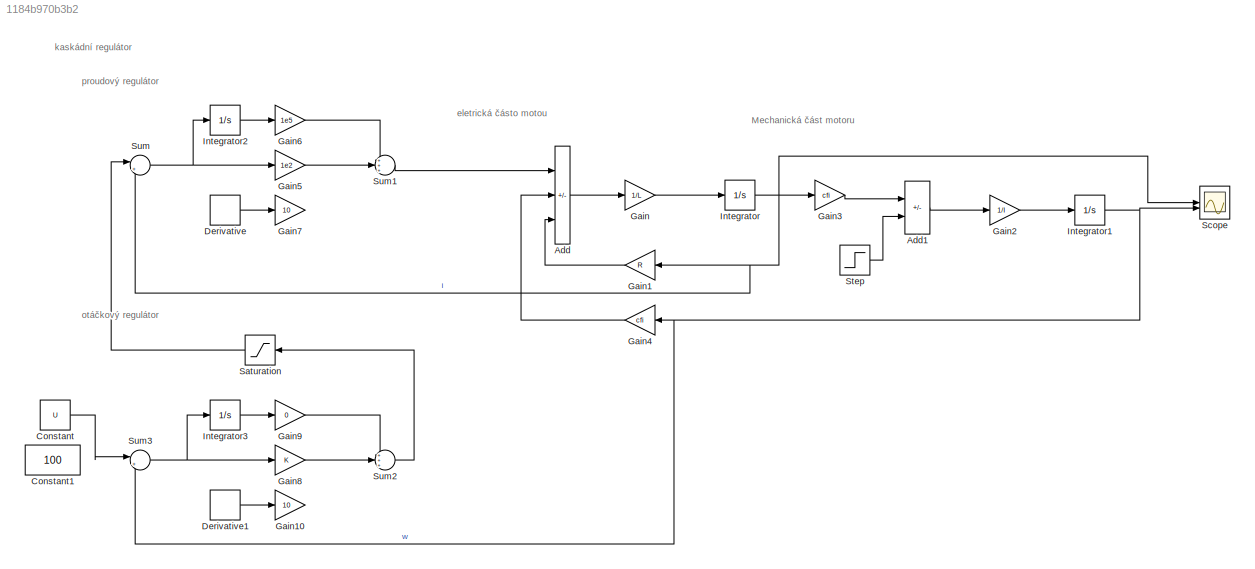
MODEL slx_1184b970b3b2
KIND model
CONFIG AbsTol = auto
CONFIG EnableMultiTasking = off
CONFIG FixedStep = auto
CONFIG MaxStep = 1e-3
CONFIG MinStep = auto
CONFIG RelTol = 1e-3
CONFIG SampleTimeConstraint = Unconstrained
CONFIG SolverName = VariableStepAuto
CONFIG StartTime = 0.0
CONFIG StopTime = 2
BLOCK [Sum] Add
  IconShape = rectangular
  Inputs = +--
BLOCK [Sum] Add1
  IconShape = rectangular
  Inputs = +-
BLOCK [Constant] Constant
  Value = U
BLOCK [Constant] Constant1
  Value = 100
BLOCK [Derivative] Derivative
BLOCK [Derivative] Derivative1
BLOCK [Gain] Gain
  Gain = 1/L
BLOCK [Gain] Gain1
  Gain = R
BLOCK [Gain] Gain10
  Gain = 10
BLOCK [Gain] Gain2
  Gain = 1/I
BLOCK [Gain] Gain3
  Gain = cfi
BLOCK [Gain] Gain4
  Gain = cfi
BLOCK [Gain] Gain5
  Gain = 1e2
BLOCK [Gain] Gain6
  Gain = 1e5
BLOCK [Gain] Gain7
  Gain = 10
BLOCK [Gain] Gain8
BLOCK [Gain] Gain9
  Gain = 0
BLOCK [Integrator] Integrator
BLOCK [Integrator] Integrator1
BLOCK [Integrator] Integrator2
BLOCK [Integrator] Integrator3
BLOCK [Saturate] Saturation
BLOCK [Scope] Scope
  Floating = off
  NumInputPorts = 2
  ScopeSpecificationString = Simulink.scopes.TimeScopeBlockCfg('CurrentConfiguration', extmgr.ConfigurationSet(extmgr.Configuration('Core','General UI',true),extmgr.Configuration('Core','Source UI',true),extmgr.Configuration('Sources','WiredSimulink',true),extmgr.Configuration('Visuals','Time Domain',true,'SerializedDisplays',{struct('MinYLimReal','-0.06486','MaxYLimReal','0.5623','YLabelReal','','MinYLimMag','0.00000','MaxYL...<+2262ch>
BLOCK [Step] Step
  After = Mz
  SampleTime = 0
BLOCK [Sum] Sum
  Inputs = |+-
BLOCK [Sum] Sum1
  Inputs = +++
BLOCK [Sum] Sum2
  Inputs = +++
BLOCK [Sum] Sum3
  Inputs = |+-
ANNOTATION (root): Mechanická část motoru
ANNOTATION (root): eletrická částo motou
ANNOTATION (root): kaskádní regulátor
ANNOTATION (root): otáčkový regulátor
ANNOTATION (root): proudový regulátor
LINE Add1:1 -> Gain2:1
LINE Add:1 -> Gain:1
LINE Constant:1 -> Sum3:1
LINE Derivative1:1 -> Gain10:1
LINE Derivative:1 -> Gain7:1
LINE Gain1:1 -> Add:3
LINE Gain2:1 -> Integrator1:1
LINE Gain3:1 -> Add1:1
LINE Gain4:1 -> Add:2
LINE Gain5:1 -> Sum1:2
LINE Gain6:1 -> Sum1:1
LINE Gain8:1 -> Sum2:2
LINE Gain9:1 -> Sum2:1
LINE Gain:1 -> Integrator:1
NET Integrator1:1 -> Gain4:1, Scope:2, Sum3:2
LINE Integrator2:1 -> Gain6:1
LINE Integrator3:1 -> Gain9:1
NET Integrator:1 -> Gain1:1, Gain3:1, Scope:1, Sum:2
LINE Saturation:1 -> Sum:1
LINE Step:1 -> Add1:2
LINE Sum1:1 -> Add:1
LINE Sum2:1 -> Saturation:1
NET Sum3:1 -> Gain8:1, Integrator3:1
NET Sum:1 -> Gain5:1, Integrator2:1
note: NET lines group one-source signal fan-out (src -> all destinations, sorted); 1:1 wires keep LINE
